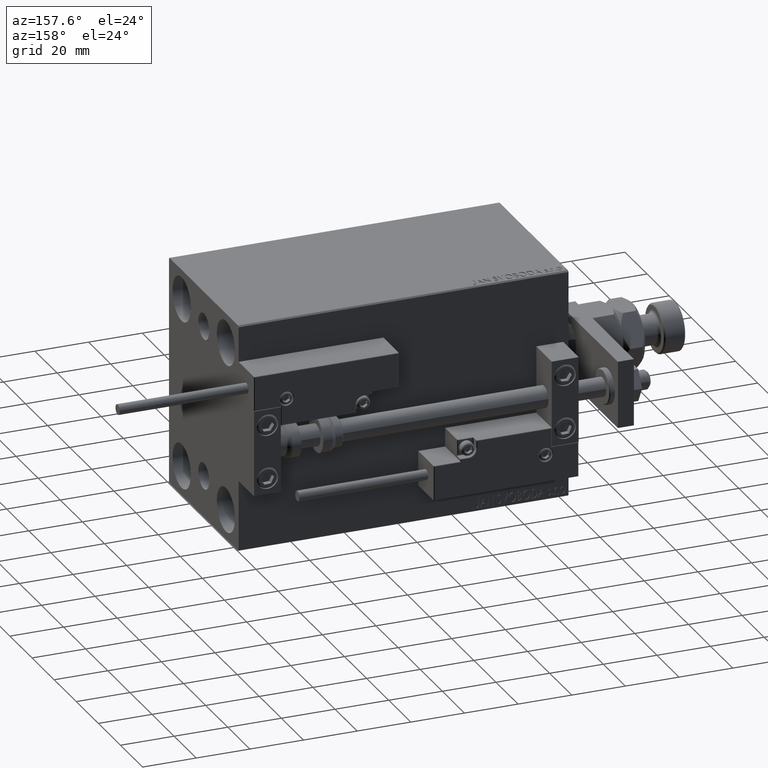
[diagram: clean part render]
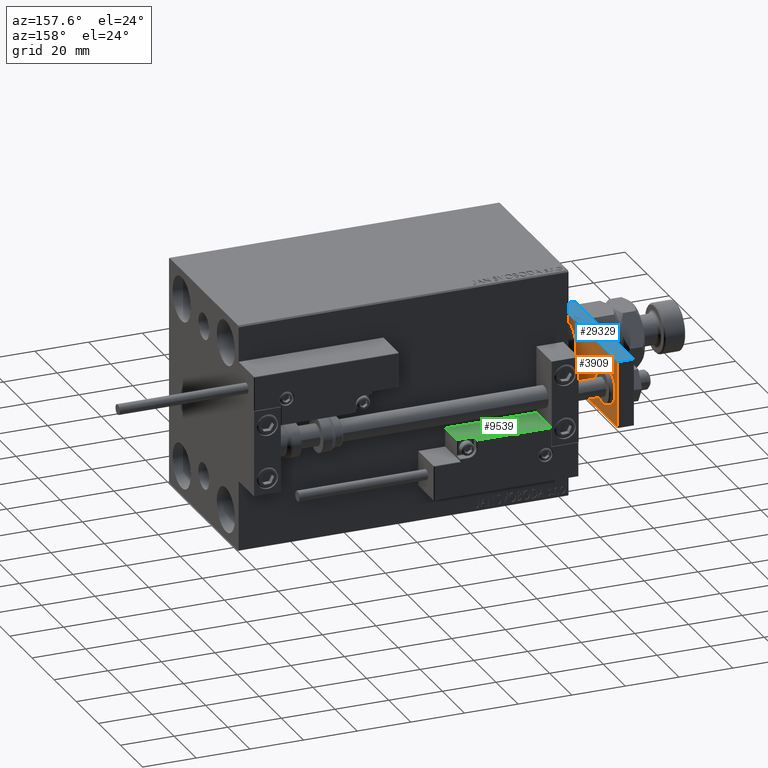
[diagram: same view with three faces highlighted in distinct colors, each labeled with its STEP entity id]
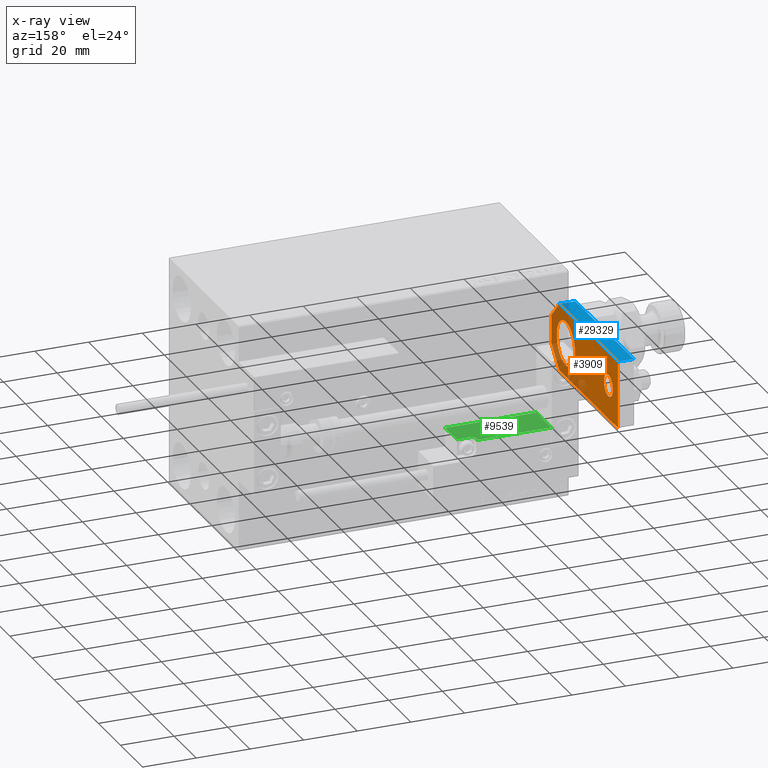
[diagram: x-ray of the same camera — body ghosted, the three highlighted faces saturated]
A machine part, auxiliary view with three faces highlighted in distinct colors.
The next image is the same camera in x-ray (body ghosted, the three faces saturated) — at least one of them is partly hidden behind the body in this view.
Their STEP definitions:

[orange] entity #3909 — the highlighted planar face has unit normal (-1, 0, 0).
#144 = DIRECTION ( 'NONE',  ( 1.000000000000000000, 0.000000000000000000, 0.000000000000000000 ) ) ;
#516 = EDGE_CURVE ( 'NONE', #27479, #14007, #21855, .T. ) ;
#857 = EDGE_CURVE ( 'NONE', #26542, #51129, #26735, .T. ) ;
#1284 = DIRECTION ( 'NONE',  ( 1.000000000000000000, 0.000000000000000000, 0.000000000000000000 ) ) ;
#2672 = EDGE_CURVE ( 'NONE', #4346, #4415, #19832, .T. ) ;
#3909 = ADVANCED_FACE ( 'NONE', ( #8743, #17121, #9778 ), #41705, .F. ) ;
#4346 = VERTEX_POINT ( 'NONE', #15202 ) ;
#4415 = VERTEX_POINT ( 'NONE', #34699 ) ;
#4472 = EDGE_CURVE ( 'NONE', #39456, #30769, #29769, .T. ) ;
#5039 = ORIENTED_EDGE ( 'NONE', *, *, #2672, .T. ) ;
#5107 = CARTESIAN_POINT ( 'NONE',  ( 12.50000000000000355, 60.00000000000000000, 0.000000000000000000 ) ) ;
#5463 = DIRECTION ( 'NONE',  ( 0.000000000000000000, 0.000000000000000000, 1.000000000000000000 ) ) ;
#5617 = VECTOR ( 'NONE', #14584, 1000.000000000000000 ) ;
#7040 = ORIENTED_EDGE ( 'NONE', *, *, #44506, .F. ) ;
#7223 = AXIS2_PLACEMENT_3D ( 'NONE', #8505, #7994, #51689 ) ;
#7260 = CARTESIAN_POINT ( 'NONE',  ( -12.50000000000000355, 4.814824860968089633E-32, 0.000000000000000000 ) ) ;
#7994 = DIRECTION ( 'NONE',  ( 0.000000000000000000, 0.000000000000000000, 1.000000000000000000 ) ) ;
#8327 = CIRCLE ( 'NONE', #42577, 8.250000000000000000 ) ;
#8505 = CARTESIAN_POINT ( 'NONE',  ( -9.629649721936179265E-32, 12.99999999999999822, 0.000000000000000000 ) ) ;
#8743 = FACE_OUTER_BOUND ( 'NONE', #41827, .T. ) ;
#8821 = CIRCLE ( 'NONE', #39769, 4.000000000000000888 ) ;
#9778 = FACE_BOUND ( 'NONE', #33963, .T. ) ;
#12944 = EDGE_LOOP ( 'NONE', ( #34041, #51078 ) ) ;
#13519 = CARTESIAN_POINT ( 'NONE',  ( -9.629649721936179265E-32, 12.99999999999999822, 0.000000000000000000 ) ) ;
#13587 = CARTESIAN_POINT ( 'NONE',  ( -1.432611055310774642E-16, 51.50000000000000000, 0.000000000000000000 ) ) ;
#14007 = VERTEX_POINT ( 'NONE', #40151 ) ;
#14584 = DIRECTION ( 'NONE',  ( 1.000000000000000000, 0.000000000000000000, 0.000000000000000000 ) ) ;
#14647 = VECTOR ( 'NONE', #40221, 1000.000000000000000 ) ;
#15202 = CARTESIAN_POINT ( 'NONE',  ( -5.500000000000010658, 4.814824860968089633E-32, 0.000000000000000000 ) ) ;
#15618 = VERTEX_POINT ( 'NONE', #30884 ) ;
#16100 = CARTESIAN_POINT ( 'NONE',  ( 12.50000000000000355, 60.00000000000000000, 0.000000000000000000 ) ) ;
#16492 = VECTOR ( 'NONE', #48733, 1000.000000000000000 ) ;
#17121 = FACE_BOUND ( 'NONE', #12944, .T. ) ;
#17695 = ORIENTED_EDGE ( 'NONE', *, *, #33771, .F. ) ;
#18134 = CARTESIAN_POINT ( 'NONE',  ( 12.50000000000000355, 7.000000000000006217, 0.000000000000000000 ) ) ;
#19013 = DIRECTION ( 'NONE',  ( 0.000000000000000000, 0.000000000000000000, 1.000000000000000000 ) ) ;
#19134 = CARTESIAN_POINT ( 'NONE',  ( 5.499999999999976907, 4.814824860968089633E-32, 0.000000000000000000 ) ) ;
#19832 = LINE ( 'NONE', #48062, #14647 ) ;
#20521 = CARTESIAN_POINT ( 'NONE',  ( 12.50000000000000355, 7.000000000000006217, 0.000000000000000000 ) ) ;
#20552 = AXIS2_PLACEMENT_3D ( 'NONE', #29398, #21820, #49036 ) ;
#20748 = CARTESIAN_POINT ( 'NONE',  ( 12.50000000000000355, 4.814824860968089633E-32, 0.000000000000000000 ) ) ;
#21258 = VECTOR ( 'NONE', #42189, 999.9999999999998863 ) ;
#21591 = DIRECTION ( 'NONE',  ( -1.000000000000000000, 0.000000000000000000, 0.000000000000000000 ) ) ;
#21820 = DIRECTION ( 'NONE',  ( -0.000000000000000000, 0.000000000000000000, 1.000000000000000000 ) ) ;
#21855 = LINE ( 'NONE', #5107, #49646 ) ;
#21887 = DIRECTION ( 'NONE',  ( 0.000000000000000000, 0.000000000000000000, 1.000000000000000000 ) ) ;
#22141 = DIRECTION ( 'NONE',  ( 1.000000000000000000, 0.000000000000000000, 0.000000000000000000 ) ) ;
#24210 = CARTESIAN_POINT ( 'NONE',  ( -8.250000000000000000, 12.99999999999999822, 0.000000000000000000 ) ) ;
#25464 = AXIS2_PLACEMENT_3D ( 'NONE', #50926, #19013, #144 ) ;
#26542 = VERTEX_POINT ( 'NONE', #20521 ) ;
#26735 = LINE ( 'NONE', #18134, #21258 ) ;
#26871 = LINE ( 'NONE', #7260, #5617 ) ;
#27479 = VERTEX_POINT ( 'NONE', #16100 ) ;
#27490 = VECTOR ( 'NONE', #39041, 1000.000000000000000 ) ;
#29398 = CARTESIAN_POINT ( 'NONE',  ( 0.000000000000000000, 0.000000000000000000, 0.000000000000000000 ) ) ;
#29769 = CIRCLE ( 'NONE', #7223, 8.250000000000000000 ) ;
#30769 = VERTEX_POINT ( 'NONE', #35849 ) ;
#30884 = CARTESIAN_POINT ( 'NONE',  ( 4.000000000000000888, 51.50000000000000000, 0.000000000000000000 ) ) ;
#33771 = EDGE_CURVE ( 'NONE', #4346, #51129, #26871, .T. ) ;
#33963 = EDGE_LOOP ( 'NONE', ( #34845, #38779 ) ) ;
#34041 = ORIENTED_EDGE ( 'NONE', *, *, #40746, .T. ) ;
#34699 = CARTESIAN_POINT ( 'NONE',  ( -12.50000000000000355, 7.000000000000013323, 0.000000000000000000 ) ) ;
#34845 = ORIENTED_EDGE ( 'NONE', *, *, #4472, .T. ) ;
#35100 = CARTESIAN_POINT ( 'NONE',  ( -4.000000000000000888, 51.50000000000000000, 0.000000000000000000 ) ) ;
#35849 = CARTESIAN_POINT ( 'NONE',  ( 8.250000000000000000, 13.00000000000000000, 0.000000000000000000 ) ) ;
#38082 = EDGE_CURVE ( 'NONE', #30769, #39456, #8327, .T. ) ;
#38779 = ORIENTED_EDGE ( 'NONE', *, *, #38082, .T. ) ;
#39041 = DIRECTION ( 'NONE',  ( -8.673617379884035472E-17, -1.000000000000000000, 0.000000000000000000 ) ) ;
#39390 = EDGE_CURVE ( 'NONE', #15618, #43912, #41357, .T. ) ;
#39456 = VERTEX_POINT ( 'NONE', #24210 ) ;
#39769 = AXIS2_PLACEMENT_3D ( 'NONE', #13587, #5463, #1284 ) ;
#39812 = CARTESIAN_POINT ( 'NONE',  ( -12.49999999999999822, 60.00000000000000000, 0.000000000000000000 ) ) ;
#40151 = CARTESIAN_POINT ( 'NONE',  ( -12.49999999999999822, 60.00000000000000000, 0.000000000000000000 ) ) ;
#40221 = DIRECTION ( 'NONE',  ( -0.7071067811865465735, 0.7071067811865485719, -0.000000000000000000 ) ) ;
#40746 = EDGE_CURVE ( 'NONE', #43912, #15618, #8821, .T. ) ;
#41357 = CIRCLE ( 'NONE', #25464, 4.000000000000000888 ) ;
#41705 = PLANE ( 'NONE',  #20552 ) ;
#41827 = EDGE_LOOP ( 'NONE', ( #17695, #5039, #49986, #43326, #7040, #47141 ) ) ;
#42189 = DIRECTION ( 'NONE',  ( -0.7071067811865486830, -0.7071067811865464625, -0.000000000000000000 ) ) ;
#42577 = AXIS2_PLACEMENT_3D ( 'NONE', #13519, #21887, #22141 ) ;
#43326 = ORIENTED_EDGE ( 'NONE', *, *, #516, .F. ) ;
#43912 = VERTEX_POINT ( 'NONE', #35100 ) ;
#43998 = LINE ( 'NONE', #39812, #27490 ) ;
#44506 = EDGE_CURVE ( 'NONE', #26542, #27479, #45072, .T. ) ;
#45072 = LINE ( 'NONE', #20748, #16492 ) ;
#47141 = ORIENTED_EDGE ( 'NONE', *, *, #857, .T. ) ;
#48062 = CARTESIAN_POINT ( 'NONE',  ( -5.500000000000010658, 4.814824860968089633E-32, 0.000000000000000000 ) ) ;
#48733 = DIRECTION ( 'NONE',  ( 0.000000000000000000, 1.000000000000000000, 0.000000000000000000 ) ) ;
#49012 = EDGE_CURVE ( 'NONE', #14007, #4415, #43998, .T. ) ;
#49036 = DIRECTION ( 'NONE',  ( 1.000000000000000000, 0.000000000000000000, 0.000000000000000000 ) ) ;
#49646 = VECTOR ( 'NONE', #21591, 1000.000000000000000 ) ;
#49986 = ORIENTED_EDGE ( 'NONE', *, *, #49012, .F. ) ;
#50926 = CARTESIAN_POINT ( 'NONE',  ( -1.432611055310774642E-16, 51.50000000000000000, 0.000000000000000000 ) ) ;
#51078 = ORIENTED_EDGE ( 'NONE', *, *, #39390, .T. ) ;
#51129 = VERTEX_POINT ( 'NONE', #19134 ) ;
#51689 = DIRECTION ( 'NONE',  ( 1.000000000000000000, 0.000000000000000000, 0.000000000000000000 ) ) ;

[blue] entity #29329 — the highlighted planar face has unit normal (0, 0, -1).
#2186 = CARTESIAN_POINT ( 'NONE',  ( 12.50000000000000355, 4.814824860968089633E-32, 6.000000000000000000 ) ) ;
#4280 = EDGE_CURVE ( 'NONE', #22107, #27479, #12048, .T. ) ;
#7049 = VERTEX_POINT ( 'NONE', #42690 ) ;
#7055 = VECTOR ( 'NONE', #38301, 1000.000000000000000 ) ;
#9489 = CARTESIAN_POINT ( 'NONE',  ( 12.50000000000000355, 4.814824860968089633E-32, 6.000000000000000000 ) ) ;
#11046 = CARTESIAN_POINT ( 'NONE',  ( 12.50000000000000355, 7.000000000000006217, 6.000000000000000000 ) ) ;
#12048 = LINE ( 'NONE', #26954, #24683 ) ;
#12906 = DIRECTION ( 'NONE',  ( 0.000000000000000000, 0.000000000000000000, 1.000000000000000000 ) ) ;
#16100 = CARTESIAN_POINT ( 'NONE',  ( 12.50000000000000355, 60.00000000000000000, 0.000000000000000000 ) ) ;
#16492 = VECTOR ( 'NONE', #48733, 1000.000000000000000 ) ;
#20469 = ORIENTED_EDGE ( 'NONE', *, *, #24086, .F. ) ;
#20521 = CARTESIAN_POINT ( 'NONE',  ( 12.50000000000000355, 7.000000000000006217, 0.000000000000000000 ) ) ;
#20748 = CARTESIAN_POINT ( 'NONE',  ( 12.50000000000000355, 4.814824860968089633E-32, 0.000000000000000000 ) ) ;
#21149 = EDGE_LOOP ( 'NONE', ( #20469, #48315, #29065, #49228 ) ) ;
#21340 = DIRECTION ( 'NONE',  ( 0.000000000000000000, 0.000000000000000000, -1.000000000000000000 ) ) ;
#22107 = VERTEX_POINT ( 'NONE', #23162 ) ;
#23162 = CARTESIAN_POINT ( 'NONE',  ( 12.50000000000000355, 60.00000000000000000, 6.000000000000000000 ) ) ;
#24086 = EDGE_CURVE ( 'NONE', #7049, #22107, #33606, .T. ) ;
#24683 = VECTOR ( 'NONE', #27478, 1000.000000000000000 ) ;
#26542 = VERTEX_POINT ( 'NONE', #20521 ) ;
#26954 = CARTESIAN_POINT ( 'NONE',  ( 12.50000000000000355, 60.00000000000000000, 6.000000000000000000 ) ) ;
#27478 = DIRECTION ( 'NONE',  ( -0.000000000000000000, -0.000000000000000000, -1.000000000000000000 ) ) ;
#27479 = VERTEX_POINT ( 'NONE', #16100 ) ;
#29065 = ORIENTED_EDGE ( 'NONE', *, *, #44506, .T. ) ;
#29329 = ADVANCED_FACE ( 'NONE', ( #48753 ), #29373, .F. ) ;
#29373 = PLANE ( 'NONE',  #29714 ) ;
#29714 = AXIS2_PLACEMENT_3D ( 'NONE', #9489, #45601, #12906 ) ;
#33606 = LINE ( 'NONE', #2186, #7055 ) ;
#33896 = LINE ( 'NONE', #11046, #36726 ) ;
#36726 = VECTOR ( 'NONE', #21340, 1000.000000000000000 ) ;
#38301 = DIRECTION ( 'NONE',  ( 0.000000000000000000, 1.000000000000000000, 0.000000000000000000 ) ) ;
#42690 = CARTESIAN_POINT ( 'NONE',  ( 12.50000000000000355, 7.000000000000006217, 6.000000000000000000 ) ) ;
#44506 = EDGE_CURVE ( 'NONE', #26542, #27479, #45072, .T. ) ;
#45072 = LINE ( 'NONE', #20748, #16492 ) ;
#45601 = DIRECTION ( 'NONE',  ( -1.000000000000000000, 0.000000000000000000, 0.000000000000000000 ) ) ;
#48315 = ORIENTED_EDGE ( 'NONE', *, *, #49846, .T. ) ;
#48733 = DIRECTION ( 'NONE',  ( 0.000000000000000000, 1.000000000000000000, 0.000000000000000000 ) ) ;
#48753 = FACE_OUTER_BOUND ( 'NONE', #21149, .T. ) ;
#49228 = ORIENTED_EDGE ( 'NONE', *, *, #4280, .F. ) ;
#49846 = EDGE_CURVE ( 'NONE', #7049, #26542, #33896, .T. ) ;

[green] entity #9539 — the highlighted planar face has unit normal (-0, -0, -1).
#67 = ORIENTED_EDGE ( 'NONE', *, *, #27609, .T. ) ;
#472 = CARTESIAN_POINT ( 'NONE',  ( 11.29999999999999893, 3.252606517456513302E-15, 10.69999999999999929 ) ) ;
#1223 = DIRECTION ( 'NONE',  ( -0.000000000000000000, -0.000000000000000000, -1.000000000000000000 ) ) ;
#1508 = ORIENTED_EDGE ( 'NONE', *, *, #36612, .F. ) ;
#1672 = ORIENTED_EDGE ( 'NONE', *, *, #29084, .T. ) ;
#2102 = VECTOR ( 'NONE', #42253, 1000.000000000000000 ) ;
#2720 = CARTESIAN_POINT ( 'NONE',  ( -16.99999999999999289, 3.252606517456513302E-15, 0.000000000000000000 ) ) ;
#5925 = CARTESIAN_POINT ( 'NONE',  ( 16.99999999999999289, 3.252606517456513302E-15, 14.00000000000000000 ) ) ;
#6224 = VECTOR ( 'NONE', #34368, 1000.000000000000000 ) ;
#7070 = CARTESIAN_POINT ( 'NONE',  ( -16.99999999999999289, 3.252606517456513302E-15, 0.000000000000000000 ) ) ;
#7307 = CARTESIAN_POINT ( 'NONE',  ( -16.99999999999999289, 3.252606517456513302E-15, 14.00000000000000000 ) ) ;
#7684 = CARTESIAN_POINT ( 'NONE',  ( 11.29999999999999893, 3.252606517456513302E-15, 11.29999999999999893 ) ) ;
#7905 = VERTEX_POINT ( 'NONE', #14698 ) ;
#8998 = CARTESIAN_POINT ( 'NONE',  ( 11.00000000000000000, 3.252606517456513302E-15, 10.69999999999999929 ) ) ;
#9539 = ADVANCED_FACE ( 'NONE', ( #30135 ), #14184, .F. ) ;
#10817 = DIRECTION ( 'NONE',  ( 0.000000000000000000, -0.000000000000000000, 1.000000000000000000 ) ) ;
#10854 = LINE ( 'NONE', #2720, #2102 ) ;
#11035 = EDGE_CURVE ( 'NONE', #38970, #50357, #41005, .T. ) ;
#11455 = DIRECTION ( 'NONE',  ( -1.000000000000000000, 0.000000000000000000, -0.000000000000000000 ) ) ;
#11774 = DIRECTION ( 'NONE',  ( -0.000000000000000000, -0.000000000000000000, -1.000000000000000000 ) ) ;
#13492 = ORIENTED_EDGE ( 'NONE', *, *, #46781, .T. ) ;
#14184 = PLANE ( 'NONE',  #45884 ) ;
#14698 = CARTESIAN_POINT ( 'NONE',  ( 10.70000000000000107, 3.252606517456513302E-15, 11.29999999999999893 ) ) ;
#15010 = CARTESIAN_POINT ( 'NONE',  ( 10.70000000000000107, 3.252606517456513302E-15, 14.00000000000000000 ) ) ;
#16979 = VERTEX_POINT ( 'NONE', #472 ) ;
#17427 = ORIENTED_EDGE ( 'NONE', *, *, #11035, .F. ) ;
#17476 = CIRCLE ( 'NONE', #45034, 0.5999999999999998668 ) ;
#18828 = VERTEX_POINT ( 'NONE', #31953 ) ;
#21774 = EDGE_LOOP ( 'NONE', ( #17427, #67, #1508, #51215, #13492, #47473, #1672 ) ) ;
#27609 = EDGE_CURVE ( 'NONE', #38970, #16979, #28877, .T. ) ;
#28877 = LINE ( 'NONE', #8998, #6224 ) ;
#29084 = EDGE_CURVE ( 'NONE', #36994, #50357, #10854, .T. ) ;
#29342 = CARTESIAN_POINT ( 'NONE',  ( 16.99999999999999289, 3.252606517456513302E-15, 10.69999999999999929 ) ) ;
#30135 = FACE_OUTER_BOUND ( 'NONE', #21774, .T. ) ;
#30806 = CARTESIAN_POINT ( 'NONE',  ( 16.99999999999999289, 3.252606517456513302E-15, 0.000000000000000000 ) ) ;
#30811 = CARTESIAN_POINT ( 'NONE',  ( -16.99999999999999289, 3.252606517456513302E-15, 13.70000000000000107 ) ) ;
#31953 = CARTESIAN_POINT ( 'NONE',  ( 10.70000000000000107, 3.252606517456513302E-15, 13.70000000000000107 ) ) ;
#34368 = DIRECTION ( 'NONE',  ( -1.000000000000000000, 0.000000000000000000, -0.000000000000000000 ) ) ;
#34747 = LINE ( 'NONE', #30811, #44948 ) ;
#36612 = EDGE_CURVE ( 'NONE', #7905, #16979, #17476, .T. ) ;
#36994 = VERTEX_POINT ( 'NONE', #7070 ) ;
#37193 = VERTEX_POINT ( 'NONE', #42611 ) ;
#37261 = LINE ( 'NONE', #15010, #50624 ) ;
#38970 = VERTEX_POINT ( 'NONE', #29342 ) ;
#41005 = LINE ( 'NONE', #5925, #43474 ) ;
#41155 = EDGE_CURVE ( 'NONE', #7905, #18828, #37261, .T. ) ;
#42173 = DIRECTION ( 'NONE',  ( 0.000000000000000000, 1.000000000000000000, 0.000000000000000000 ) ) ;
#42253 = DIRECTION ( 'NONE',  ( 1.000000000000000000, 0.000000000000000000, 0.000000000000000000 ) ) ;
#42611 = CARTESIAN_POINT ( 'NONE',  ( -16.99999999999999289, 3.252606517456513302E-15, 13.70000000000000107 ) ) ;
#43474 = VECTOR ( 'NONE', #1223, 1000.000000000000000 ) ;
#43537 = DIRECTION ( 'NONE',  ( 0.000000000000000000, 0.000000000000000000, 1.000000000000000000 ) ) ;
#43675 = DIRECTION ( 'NONE',  ( 0.000000000000000000, -0.000000000000000000, 1.000000000000000000 ) ) ;
#44948 = VECTOR ( 'NONE', #11455, 1000.000000000000000 ) ;
#45034 = AXIS2_PLACEMENT_3D ( 'NONE', #7684, #50591, #43537 ) ;
#45884 = AXIS2_PLACEMENT_3D ( 'NONE', #7307, #42173, #43675 ) ;
#46781 = EDGE_CURVE ( 'NONE', #18828, #37193, #34747, .T. ) ;
#47097 = LINE ( 'NONE', #47617, #49237 ) ;
#47473 = ORIENTED_EDGE ( 'NONE', *, *, #50176, .T. ) ;
#47617 = CARTESIAN_POINT ( 'NONE',  ( -16.99999999999999289, 3.252606517456513302E-15, 14.00000000000000000 ) ) ;
#49237 = VECTOR ( 'NONE', #11774, 1000.000000000000000 ) ;
#50176 = EDGE_CURVE ( 'NONE', #37193, #36994, #47097, .T. ) ;
#50357 = VERTEX_POINT ( 'NONE', #30806 ) ;
#50591 = DIRECTION ( 'NONE',  ( -0.000000000000000000, -1.000000000000000000, -0.000000000000000000 ) ) ;
#50624 = VECTOR ( 'NONE', #10817, 1000.000000000000000 ) ;
#51215 = ORIENTED_EDGE ( 'NONE', *, *, #41155, .T. ) ;